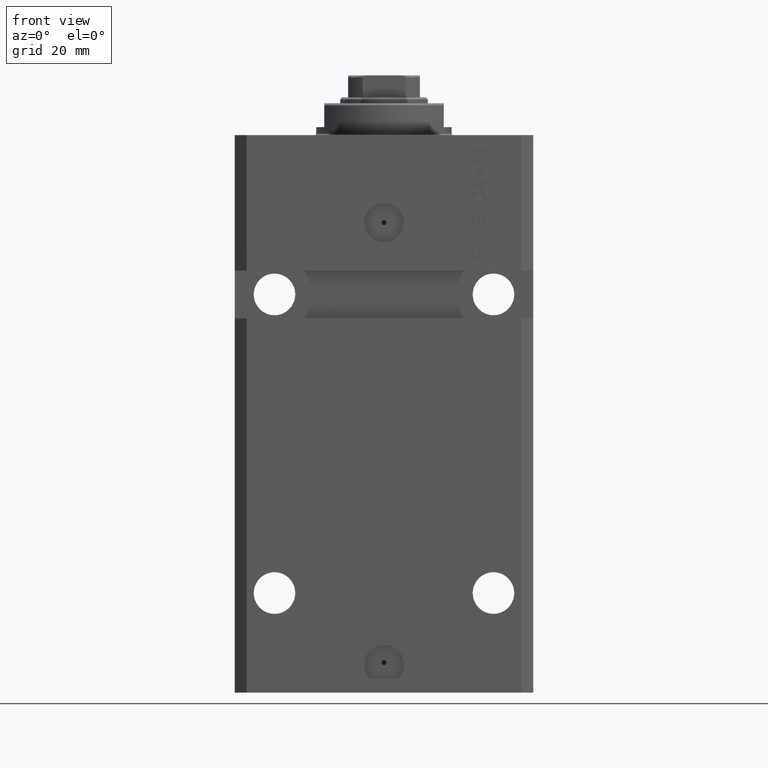
[diagram: clean part render]
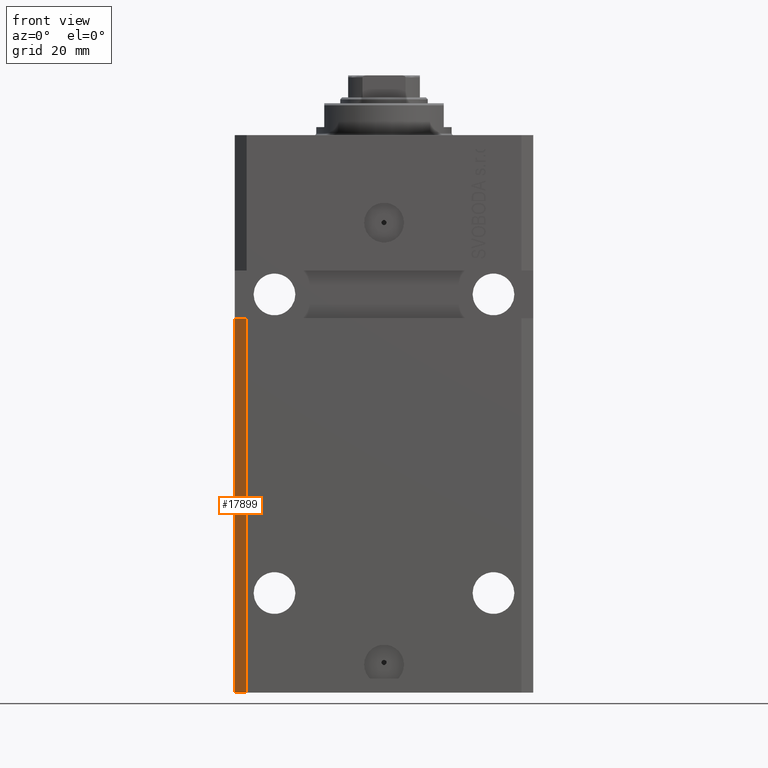
[diagram: same view with one face highlighted and labeled with its STEP entity id]
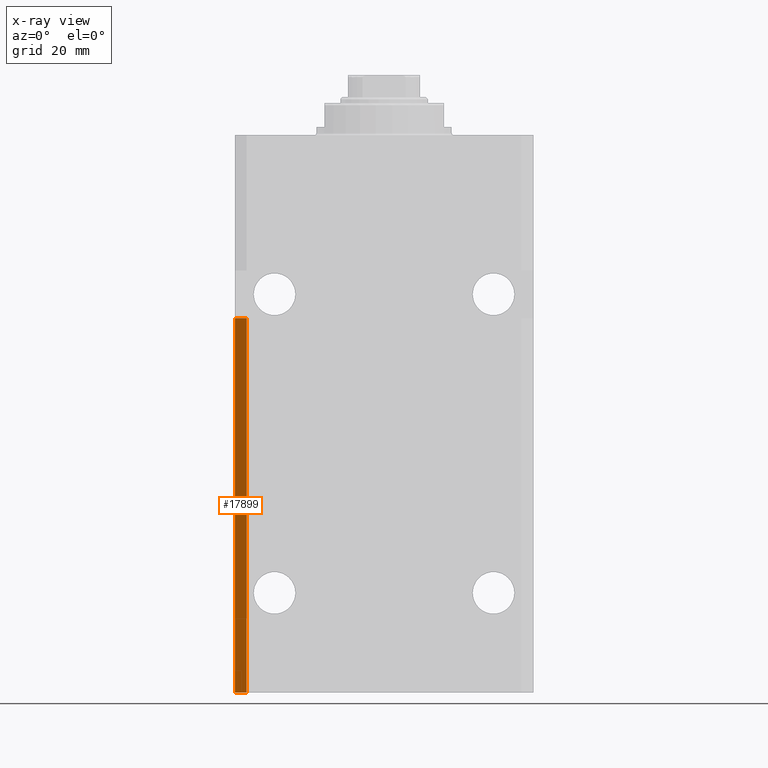
[diagram: x-ray of the same camera — body ghosted, the highlighted face saturated]
A machine part, front view. The second image highlights one B-rep face of the part: STEP entity #17899.
The next image is the same camera in x-ray: the body ghosted, the highlighted face saturated — about 0% of this face is hidden behind the body in this view.
In plain terms, the highlighted planar face has unit normal (-0.7071, -0.7071, 0).
Its self-contained STEP definition (entity closure, byte-faithful):
#2113 = CARTESIAN_POINT ( 'NONE',  ( -37.49999999999999289, -24.50000000000000000, -140.0000000000000000 ) ) ;
#2534 = CARTESIAN_POINT ( 'NONE',  ( -34.49999999999998579, -27.49999999999999645, -140.0000000000000000 ) ) ;
#3277 = CARTESIAN_POINT ( 'NONE',  ( -37.49999999999999289, -24.50000000000000000, -140.0000000000000000 ) ) ;
#4772 = CARTESIAN_POINT ( 'NONE',  ( -37.50000000000000000, -24.50000000000000000, -46.00000000000000000 ) ) ;
#5108 = PLANE ( 'NONE',  #39416 ) ;
#6789 = CARTESIAN_POINT ( 'NONE',  ( -34.49999999999998579, -27.49999999999999645, -140.0000000000000000 ) ) ;
#7636 = VECTOR ( 'NONE', #28529, 1000.000000000000000 ) ;
#14614 = VECTOR ( 'NONE', #32835, 1000.000000000000000 ) ;
#16676 = DIRECTION ( 'NONE',  ( 0.7071067811865483499, -0.7071067811865466846, 6.542051911182404951E-17 ) ) ;
#17119 = EDGE_CURVE ( 'NONE', #40261, #22675, #35313, .T. ) ;
#17299 = DIRECTION ( 'NONE',  ( 0.000000000000000000, 0.000000000000000000, 1.000000000000000000 ) ) ;
#17899 = ADVANCED_FACE ( 'NONE', ( #45317 ), #5108, .T. ) ;
#17920 = CARTESIAN_POINT ( 'NONE',  ( -34.49999999999998579, -27.50000000000000000, -46.00000000000000000 ) ) ;
#19976 = VERTEX_POINT ( 'NONE', #6789 ) ;
#20322 = CARTESIAN_POINT ( 'NONE',  ( -37.50000000000000000, -24.49999999999999645, -46.00000000000000000 ) ) ;
#21704 = LINE ( 'NONE', #3277, #14614 ) ;
#22675 = VERTEX_POINT ( 'NONE', #4772 ) ;
#25160 = EDGE_CURVE ( 'NONE', #22675, #36845, #42121, .T. ) ;
#25480 = VECTOR ( 'NONE', #17299, 1000.000000000000000 ) ;
#28529 = DIRECTION ( 'NONE',  ( 0.000000000000000000, 0.000000000000000000, 1.000000000000000000 ) ) ;
#28820 = ORIENTED_EDGE ( 'NONE', *, *, #25160, .F. ) ;
#30799 = CARTESIAN_POINT ( 'NONE',  ( -37.49999999999999289, -24.50000000000000000, -140.0000000000000000 ) ) ;
#31044 = DIRECTION ( 'NONE',  ( 0.7071067811865483499, -0.7071067811865466846, 0.000000000000000000 ) ) ;
#31152 = LINE ( 'NONE', #2534, #25480 ) ;
#32666 = VECTOR ( 'NONE', #16676, 1000.000000000000114 ) ;
#32835 = DIRECTION ( 'NONE',  ( 0.7071067811865483499, -0.7071067811865466846, 0.000000000000000000 ) ) ;
#34144 = EDGE_LOOP ( 'NONE', ( #28820, #41669, #44958, #35031 ) ) ;
#35031 = ORIENTED_EDGE ( 'NONE', *, *, #46970, .T. ) ;
#35313 = LINE ( 'NONE', #2113, #7636 ) ;
#36845 = VERTEX_POINT ( 'NONE', #17920 ) ;
#39416 = AXIS2_PLACEMENT_3D ( 'NONE', #30799, #45570, #31044 ) ;
#40261 = VERTEX_POINT ( 'NONE', #43780 ) ;
#41669 = ORIENTED_EDGE ( 'NONE', *, *, #17119, .F. ) ;
#42121 = LINE ( 'NONE', #20322, #32666 ) ;
#43780 = CARTESIAN_POINT ( 'NONE',  ( -37.49999999999999289, -24.50000000000000000, -140.0000000000000000 ) ) ;
#44958 = ORIENTED_EDGE ( 'NONE', *, *, #45831, .T. ) ;
#45317 = FACE_OUTER_BOUND ( 'NONE', #34144, .T. ) ;
#45570 = DIRECTION ( 'NONE',  ( -0.7071067811865466846, -0.7071067811865483499, 0.000000000000000000 ) ) ;
#45831 = EDGE_CURVE ( 'NONE', #40261, #19976, #21704, .T. ) ;
#46970 = EDGE_CURVE ( 'NONE', #19976, #36845, #31152, .T. ) ;